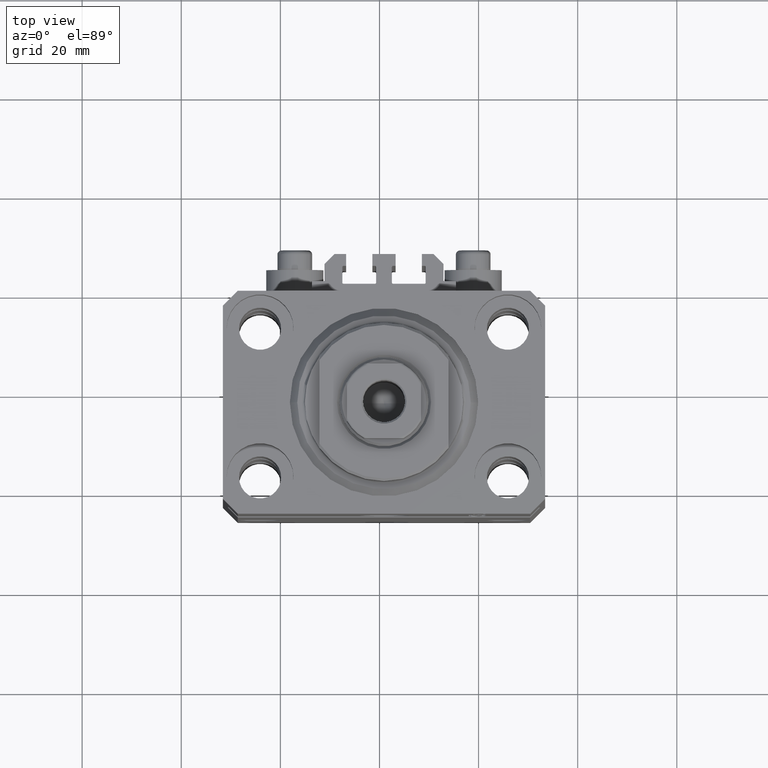
[diagram: clean part render]
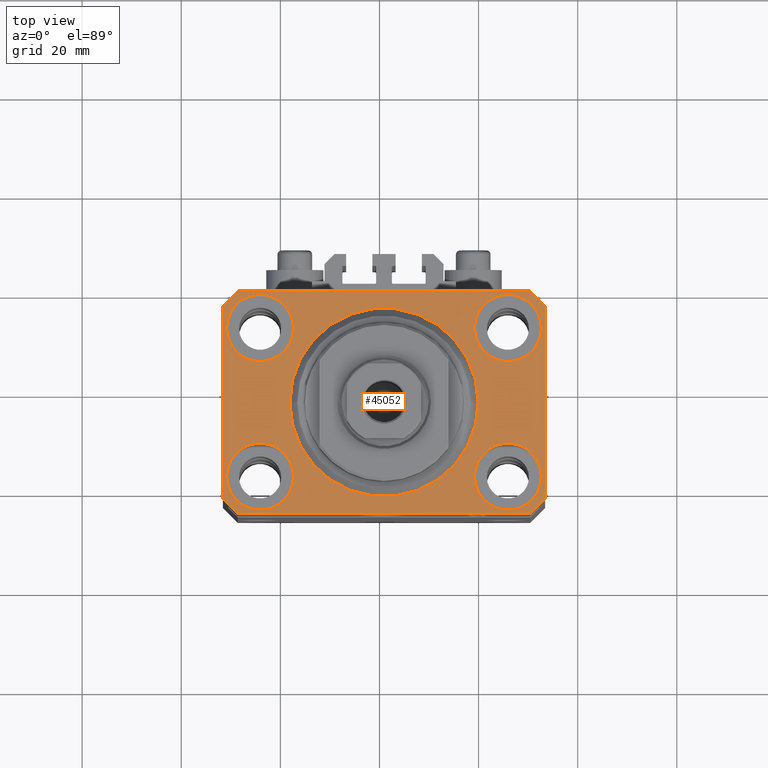
[diagram: same view with one face highlighted and labeled with its STEP entity id]
A machine part, top view. The second image highlights one B-rep face of the part: STEP entity #45052.
In plain terms, the highlighted planar face has unit normal (0, 0, 1).
Its self-contained STEP definition (entity closure, byte-faithful):
#220 = CIRCLE ( 'NONE', #11023, 6.749999999977465137 ) ;
#289 = CARTESIAN_POINT ( 'NONE',  ( 18.25000000002253842, -15.00000000000000000, 0.000000000000000000 ) ) ;
#849 = EDGE_CURVE ( 'NONE', #43476, #31709, #29118, .T. ) ;
#928 = LINE ( 'NONE', #26752, #6146 ) ;
#948 = CARTESIAN_POINT ( 'NONE',  ( -29.49999999999650413, -22.49999999999949907, 0.000000000000000000 ) ) ;
#1002 = CARTESIAN_POINT ( 'NONE',  ( 29.49999999999707967, 22.49999999999951328, 0.000000000000000000 ) ) ;
#1067 = CARTESIAN_POINT ( 'NONE',  ( 31.74999999997746869, -15.00000000000000000, 0.000000000000000000 ) ) ;
#1198 = DIRECTION ( 'NONE',  ( 0.000000000000000000, 0.000000000000000000, 1.000000000000000000 ) ) ;
#1348 = DIRECTION ( 'NONE',  ( 0.000000000000000000, 0.000000000000000000, 1.000000000000000000 ) ) ;
#1678 = VERTEX_POINT ( 'NONE', #1067 ) ;
#1947 = CARTESIAN_POINT ( 'NONE',  ( 31.74999999995845101, 15.00000000000000888, 0.000000000000000000 ) ) ;
#2833 = DIRECTION ( 'NONE',  ( 0.000000000000000000, -1.000000000000000000, 0.000000000000000000 ) ) ;
#2872 = VECTOR ( 'NONE', #2833, 1000.000000000000000 ) ;
#3327 = CARTESIAN_POINT ( 'NONE',  ( -32.49999999999650413, -19.49999999999949907, 0.000000000000000000 ) ) ;
#3395 = DIRECTION ( 'NONE',  ( 0.000000000000000000, 0.000000000000000000, 1.000000000000000000 ) ) ;
#3468 = EDGE_CURVE ( 'NONE', #1678, #26154, #27778, .T. ) ;
#3986 = DIRECTION ( 'NONE',  ( 0.000000000000000000, 0.000000000000000000, 1.000000000000000000 ) ) ;
#4336 = LINE ( 'NONE', #948, #11089 ) ;
#5484 = DIRECTION ( 'NONE',  ( 0.000000000000000000, 0.000000000000000000, 1.000000000000000000 ) ) ;
#5584 = EDGE_CURVE ( 'NONE', #24693, #25983, #30050, .T. ) ;
#5641 = ORIENTED_EDGE ( 'NONE', *, *, #46273, .F. ) ;
#5745 = AXIS2_PLACEMENT_3D ( 'NONE', #24255, #9530, #44640 ) ;
#5765 = FACE_BOUND ( 'NONE', #40194, .T. ) ;
#5940 = EDGE_CURVE ( 'NONE', #24207, #18792, #928, .T. ) ;
#6146 = VECTOR ( 'NONE', #11569, 1000.000000000000000 ) ;
#6634 = ORIENTED_EDGE ( 'NONE', *, *, #38753, .T. ) ;
#7712 = EDGE_CURVE ( 'NONE', #25983, #24693, #23203, .T. ) ;
#7769 = LINE ( 'NONE', #1002, #21068 ) ;
#8907 = EDGE_LOOP ( 'NONE', ( #13405, #28409 ) ) ;
#8934 = AXIS2_PLACEMENT_3D ( 'NONE', #35763, #1348, #16069 ) ;
#9262 = DIRECTION ( 'NONE',  ( 0.000000000000000000, 0.000000000000000000, 1.000000000000000000 ) ) ;
#9267 = VERTEX_POINT ( 'NONE', #43604 ) ;
#9359 = DIRECTION ( 'NONE',  ( 0.000000000000000000, 0.000000000000000000, 1.000000000000000000 ) ) ;
#9384 = ORIENTED_EDGE ( 'NONE', *, *, #849, .T. ) ;
#9406 = EDGE_LOOP ( 'NONE', ( #22125, #17932 ) ) ;
#9530 = DIRECTION ( 'NONE',  ( 0.000000000000000000, 0.000000000000000000, 1.000000000000000000 ) ) ;
#9723 = EDGE_CURVE ( 'NONE', #18792, #9267, #17113, .T. ) ;
#9976 = CARTESIAN_POINT ( 'NONE',  ( 0.000000000000000000, 0.000000000000000000, 0.000000000000000000 ) ) ;
#10602 = LINE ( 'NONE', #25547, #36526 ) ;
#11023 = AXIS2_PLACEMENT_3D ( 'NONE', #22321, #3986, #18200 ) ;
#11089 = VECTOR ( 'NONE', #41738, 1000.000000000000000 ) ;
#11569 = DIRECTION ( 'NONE',  ( 0.7071067811865483499, 0.7071067811865466846, 0.000000000000000000 ) ) ;
#11722 = VERTEX_POINT ( 'NONE', #1947 ) ;
#12076 = DIRECTION ( 'NONE',  ( 1.000000000000000000, 0.000000000000000000, 0.000000000000000000 ) ) ;
#12094 = CARTESIAN_POINT ( 'NONE',  ( 29.49999999999707967, 22.49999999999951328, 0.000000000000000000 ) ) ;
#12098 = EDGE_CURVE ( 'NONE', #26154, #1678, #220, .T. ) ;
#12761 = CARTESIAN_POINT ( 'NONE',  ( 24.99999999999999645, 15.00000000000000888, 0.000000000000000000 ) ) ;
#12862 = AXIS2_PLACEMENT_3D ( 'NONE', #9976, #9262, #38935 ) ;
#12984 = DIRECTION ( 'NONE',  ( 1.000000000000000000, 0.000000000000000000, 0.000000000000000000 ) ) ;
#13405 = ORIENTED_EDGE ( 'NONE', *, *, #25025, .F. ) ;
#14504 = CARTESIAN_POINT ( 'NONE',  ( -31.75000000002253842, 15.00000000000000000, 0.000000000000000000 ) ) ;
#14629 = ORIENTED_EDGE ( 'NONE', *, *, #42160, .F. ) ;
#14882 = CARTESIAN_POINT ( 'NONE',  ( -32.49999999999650413, -19.49999999999949907, 0.000000000000000000 ) ) ;
#14995 = ORIENTED_EDGE ( 'NONE', *, *, #38407, .T. ) ;
#15096 = CARTESIAN_POINT ( 'NONE',  ( -32.49999999999650413, 19.49999999999949907, 0.000000000000000000 ) ) ;
#15104 = CIRCLE ( 'NONE', #28938, 6.749999999958452790 ) ;
#15452 = VECTOR ( 'NONE', #22072, 1000.000000000000114 ) ;
#15945 = EDGE_CURVE ( 'NONE', #9267, #19611, #10602, .T. ) ;
#16069 = DIRECTION ( 'NONE',  ( 1.000000000000000000, 0.000000000000000000, 0.000000000000000000 ) ) ;
#16352 = EDGE_LOOP ( 'NONE', ( #29991, #30190 ) ) ;
#17113 = LINE ( 'NONE', #32082, #37159 ) ;
#17814 = PLANE ( 'NONE',  #29674 ) ;
#17932 = ORIENTED_EDGE ( 'NONE', *, *, #47139, .F. ) ;
#18200 = DIRECTION ( 'NONE',  ( 1.000000000000000000, 0.000000000000000000, 0.000000000000000000 ) ) ;
#18202 = CARTESIAN_POINT ( 'NONE',  ( -29.49999999999650413, 22.49999999999949907, 0.000000000000000000 ) ) ;
#18414 = VERTEX_POINT ( 'NONE', #46144 ) ;
#18792 = VERTEX_POINT ( 'NONE', #39214 ) ;
#18887 = CIRCLE ( 'NONE', #45911, 6.750000000022533087 ) ;
#19247 = DIRECTION ( 'NONE',  ( 1.000000000000000000, 0.000000000000000000, 0.000000000000000000 ) ) ;
#19611 = VERTEX_POINT ( 'NONE', #12094 ) ;
#20094 = VERTEX_POINT ( 'NONE', #42763 ) ;
#20388 = CIRCLE ( 'NONE', #5745, 6.750000000022533087 ) ;
#20814 = CARTESIAN_POINT ( 'NONE',  ( -18.24999999997747224, 15.00000000000000000, 0.000000000000000000 ) ) ;
#20955 = DIRECTION ( 'NONE',  ( 0.000000000000000000, 0.000000000000000000, 1.000000000000000000 ) ) ;
#21068 = VECTOR ( 'NONE', #45420, 1000.000000000000000 ) ;
#21101 = VERTEX_POINT ( 'NONE', #37908 ) ;
#21172 = LINE ( 'NONE', #35901, #2872 ) ;
#21193 = CARTESIAN_POINT ( 'NONE',  ( 0.000000000000000000, 0.000000000000000000, 0.000000000000000000 ) ) ;
#22072 = DIRECTION ( 'NONE',  ( -0.7071067811865474617, -0.7071067811865474617, 0.000000000000000000 ) ) ;
#22125 = ORIENTED_EDGE ( 'NONE', *, *, #43237, .F. ) ;
#22321 = CARTESIAN_POINT ( 'NONE',  ( 25.00000000000000355, -15.00000000000000000, 0.000000000000000000 ) ) ;
#22954 = DIRECTION ( 'NONE',  ( 0.000000000000000000, 0.000000000000000000, 1.000000000000000000 ) ) ;
#23203 = CIRCLE ( 'NONE', #43243, 6.750000000041541881 ) ;
#23886 = VECTOR ( 'NONE', #36843, 1000.000000000000114 ) ;
#24193 = VERTEX_POINT ( 'NONE', #20814 ) ;
#24207 = VERTEX_POINT ( 'NONE', #34837 ) ;
#24255 = CARTESIAN_POINT ( 'NONE',  ( -25.00000000000000355, 15.00000000000000000, 0.000000000000000000 ) ) ;
#24360 = DIRECTION ( 'NONE',  ( 1.000000000000000000, 0.000000000000000000, -0.000000000000000000 ) ) ;
#24693 = VERTEX_POINT ( 'NONE', #30158 ) ;
#24823 = FACE_BOUND ( 'NONE', #8907, .T. ) ;
#25025 = EDGE_CURVE ( 'NONE', #18414, #20094, #39802, .T. ) ;
#25547 = CARTESIAN_POINT ( 'NONE',  ( 32.49999999999702993, 19.49999999999945999, 0.000000000000000000 ) ) ;
#25983 = VERTEX_POINT ( 'NONE', #47199 ) ;
#26154 = VERTEX_POINT ( 'NONE', #289 ) ;
#26396 = ORIENTED_EDGE ( 'NONE', *, *, #12098, .F. ) ;
#26514 = EDGE_CURVE ( 'NONE', #33618, #43476, #21172, .T. ) ;
#26641 = CIRCLE ( 'NONE', #47409, 6.749999999958452790 ) ;
#26752 = CARTESIAN_POINT ( 'NONE',  ( 29.49999999999650413, -22.49999999999949196, 0.000000000000000000 ) ) ;
#27025 = AXIS2_PLACEMENT_3D ( 'NONE', #37595, #37121, #19247 ) ;
#27778 = CIRCLE ( 'NONE', #27025, 6.749999999977465137 ) ;
#27956 = ORIENTED_EDGE ( 'NONE', *, *, #9723, .T. ) ;
#28240 = CARTESIAN_POINT ( 'NONE',  ( -29.49999999999650413, -22.49999999999949907, 0.000000000000000000 ) ) ;
#28409 = ORIENTED_EDGE ( 'NONE', *, *, #46510, .F. ) ;
#28938 = AXIS2_PLACEMENT_3D ( 'NONE', #12761, #9359, #12984 ) ;
#29118 = LINE ( 'NONE', #14882, #23886 ) ;
#29674 = AXIS2_PLACEMENT_3D ( 'NONE', #21193, #20955, #24360 ) ;
#29991 = ORIENTED_EDGE ( 'NONE', *, *, #5584, .F. ) ;
#30050 = CIRCLE ( 'NONE', #37013, 6.750000000041541881 ) ;
#30158 = CARTESIAN_POINT ( 'NONE',  ( -18.24999999995846167, -15.00000000000000000, 0.000000000000000000 ) ) ;
#30161 = CARTESIAN_POINT ( 'NONE',  ( 24.99999999999999645, 15.00000000000000888, 0.000000000000000000 ) ) ;
#30190 = ORIENTED_EDGE ( 'NONE', *, *, #7712, .F. ) ;
#30306 = ORIENTED_EDGE ( 'NONE', *, *, #5940, .T. ) ;
#30614 = CARTESIAN_POINT ( 'NONE',  ( -25.00000000000000355, 15.00000000000000000, 0.000000000000000000 ) ) ;
#31293 = EDGE_CURVE ( 'NONE', #21101, #33618, #33403, .T. ) ;
#31709 = VERTEX_POINT ( 'NONE', #28240 ) ;
#32082 = CARTESIAN_POINT ( 'NONE',  ( 32.49999999999651124, -19.49999999999949196, 0.000000000000000000 ) ) ;
#32536 = FACE_BOUND ( 'NONE', #46463, .T. ) ;
#32554 = DIRECTION ( 'NONE',  ( 1.334402673828349134E-14, 1.000000000000000000, 0.000000000000000000 ) ) ;
#32789 = ORIENTED_EDGE ( 'NONE', *, *, #31293, .T. ) ;
#32800 = CIRCLE ( 'NONE', #8934, 19.00000000000000000 ) ;
#32843 = DIRECTION ( 'NONE',  ( 1.000000000000000000, 0.000000000000000000, 0.000000000000000000 ) ) ;
#33330 = CARTESIAN_POINT ( 'NONE',  ( -25.00000000000000355, -15.00000000000000000, 0.000000000000000000 ) ) ;
#33403 = LINE ( 'NONE', #18202, #15452 ) ;
#33618 = VERTEX_POINT ( 'NONE', #15096 ) ;
#34837 = CARTESIAN_POINT ( 'NONE',  ( 29.49999999999650413, -22.49999999999949196, 0.000000000000000000 ) ) ;
#34925 = DIRECTION ( 'NONE',  ( 1.000000000000000000, 0.000000000000000000, 0.000000000000000000 ) ) ;
#35763 = CARTESIAN_POINT ( 'NONE',  ( 0.000000000000000000, 0.000000000000000000, 0.000000000000000000 ) ) ;
#35901 = CARTESIAN_POINT ( 'NONE',  ( -32.49999999999650413, 19.49999999999949907, 0.000000000000000000 ) ) ;
#35922 = FACE_OUTER_BOUND ( 'NONE', #46753, .T. ) ;
#36526 = VECTOR ( 'NONE', #40522, 1000.000000000000000 ) ;
#36843 = DIRECTION ( 'NONE',  ( 0.7071067811865474617, -0.7071067811865474617, 0.000000000000000000 ) ) ;
#37013 = AXIS2_PLACEMENT_3D ( 'NONE', #33330, #22954, #37670 ) ;
#37121 = DIRECTION ( 'NONE',  ( 0.000000000000000000, 0.000000000000000000, 1.000000000000000000 ) ) ;
#37159 = VECTOR ( 'NONE', #32554, 1000.000000000000000 ) ;
#37595 = CARTESIAN_POINT ( 'NONE',  ( 25.00000000000000355, -15.00000000000000000, 0.000000000000000000 ) ) ;
#37670 = DIRECTION ( 'NONE',  ( 1.000000000000000000, 0.000000000000000000, 0.000000000000000000 ) ) ;
#37908 = CARTESIAN_POINT ( 'NONE',  ( -29.49999999999650413, 22.49999999999949907, 0.000000000000000000 ) ) ;
#38407 = EDGE_CURVE ( 'NONE', #19611, #21101, #7769, .T. ) ;
#38753 = EDGE_CURVE ( 'NONE', #31709, #24207, #4336, .T. ) ;
#38935 = DIRECTION ( 'NONE',  ( 1.000000000000000000, 0.000000000000000000, 0.000000000000000000 ) ) ;
#39212 = CARTESIAN_POINT ( 'NONE',  ( 18.25000000004154543, 15.00000000000000888, 0.000000000000000000 ) ) ;
#39214 = CARTESIAN_POINT ( 'NONE',  ( 32.49999999999651124, -19.49999999999949196, 0.000000000000000000 ) ) ;
#39802 = CIRCLE ( 'NONE', #12862, 19.00000000000000000 ) ;
#39821 = CARTESIAN_POINT ( 'NONE',  ( -25.00000000000000355, -15.00000000000000000, 0.000000000000000000 ) ) ;
#40194 = EDGE_LOOP ( 'NONE', ( #45045, #26396 ) ) ;
#40522 = DIRECTION ( 'NONE',  ( -0.7071067811865352493, 0.7071067811865597852, 0.000000000000000000 ) ) ;
#41738 = DIRECTION ( 'NONE',  ( 1.000000000000000000, 1.176083712526788232E-16, 0.000000000000000000 ) ) ;
#42159 = ORIENTED_EDGE ( 'NONE', *, *, #26514, .T. ) ;
#42160 = EDGE_CURVE ( 'NONE', #44086, #24193, #20388, .T. ) ;
#42701 = FACE_BOUND ( 'NONE', #16352, .T. ) ;
#42763 = CARTESIAN_POINT ( 'NONE',  ( -19.00000000000000000, 2.326828918379970970E-15, 0.000000000000000000 ) ) ;
#43237 = EDGE_CURVE ( 'NONE', #11722, #43671, #26641, .T. ) ;
#43243 = AXIS2_PLACEMENT_3D ( 'NONE', #39821, #3395, #32843 ) ;
#43476 = VERTEX_POINT ( 'NONE', #3327 ) ;
#43604 = CARTESIAN_POINT ( 'NONE',  ( 32.49999999999702993, 19.49999999999945999, 0.000000000000000000 ) ) ;
#43671 = VERTEX_POINT ( 'NONE', #39212 ) ;
#44086 = VERTEX_POINT ( 'NONE', #14504 ) ;
#44640 = DIRECTION ( 'NONE',  ( 1.000000000000000000, 0.000000000000000000, 0.000000000000000000 ) ) ;
#45045 = ORIENTED_EDGE ( 'NONE', *, *, #3468, .F. ) ;
#45052 = ADVANCED_FACE ( 'NONE', ( #42701, #5765, #47272, #32536, #24823, #35922 ), #17814, .T. ) ;
#45420 = DIRECTION ( 'NONE',  ( -1.000000000000000000, -2.352167425053553784E-16, 0.000000000000000000 ) ) ;
#45891 = ORIENTED_EDGE ( 'NONE', *, *, #15945, .T. ) ;
#45911 = AXIS2_PLACEMENT_3D ( 'NONE', #30614, #5484, #34925 ) ;
#46144 = CARTESIAN_POINT ( 'NONE',  ( 19.00000000000000000, 0.000000000000000000, 0.000000000000000000 ) ) ;
#46273 = EDGE_CURVE ( 'NONE', #24193, #44086, #18887, .T. ) ;
#46463 = EDGE_LOOP ( 'NONE', ( #5641, #14629 ) ) ;
#46510 = EDGE_CURVE ( 'NONE', #20094, #18414, #32800, .T. ) ;
#46753 = EDGE_LOOP ( 'NONE', ( #14995, #32789, #42159, #9384, #6634, #30306, #27956, #45891 ) ) ;
#47139 = EDGE_CURVE ( 'NONE', #43671, #11722, #15104, .T. ) ;
#47199 = CARTESIAN_POINT ( 'NONE',  ( -31.75000000004154899, -15.00000000000000000, 0.000000000000000000 ) ) ;
#47272 = FACE_BOUND ( 'NONE', #9406, .T. ) ;
#47409 = AXIS2_PLACEMENT_3D ( 'NONE', #30161, #1198, #12076 ) ;